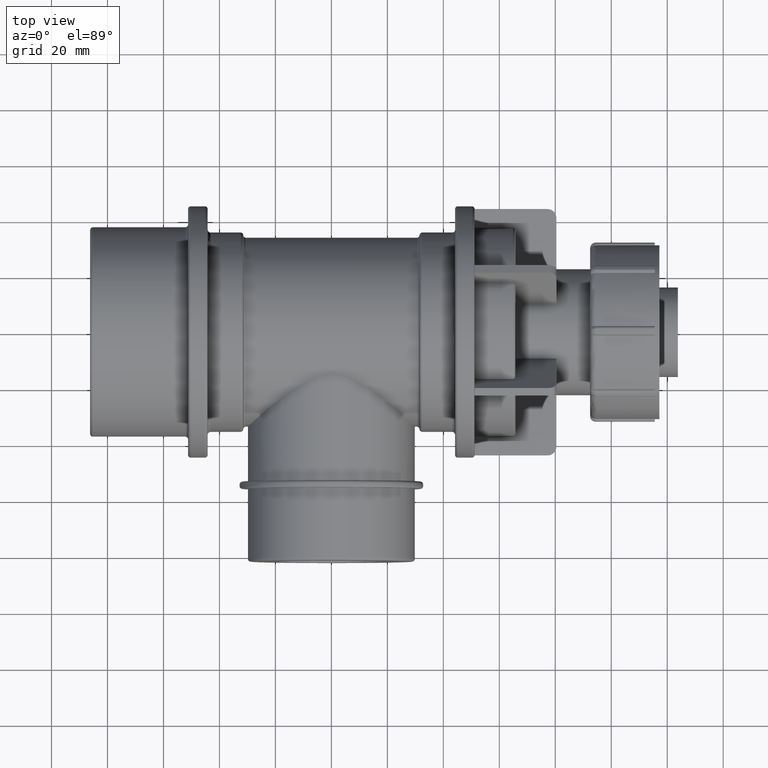
[diagram: clean part render]
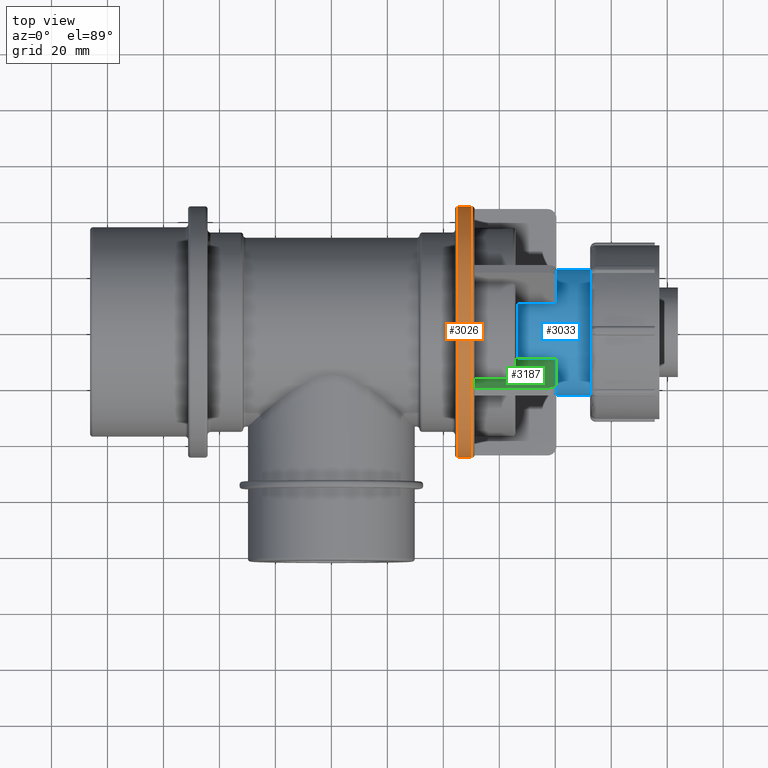
[diagram: same view with three faces highlighted in distinct colors, each labeled with its STEP entity id]
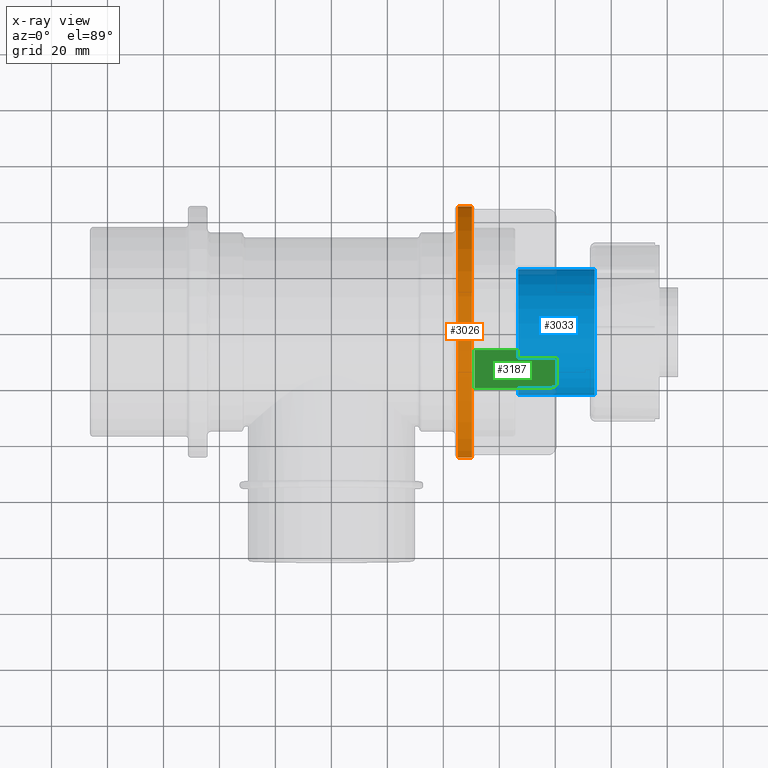
[diagram: x-ray of the same camera — body ghosted, the three highlighted faces saturated]
A machine part, top view with three faces highlighted in distinct colors.
The next image is the same camera in x-ray (body ghosted, the three faces saturated) — at least one of them is partly hidden behind the body in this view.
Their STEP definitions:

[orange] entity #3026 — the highlighted cylindrical surface (bore or boss wall) has radius 45 mm, axis along (1, 0, 0).
#531=CIRCLE('',#3267,45.);
#532=CIRCLE('',#3269,45.);
#760=FACE_BOUND('',#1054,.T.);
#819=FACE_OUTER_BOUND('',#1053,.T.);
#1053=EDGE_LOOP('',(#2107));
#1054=EDGE_LOOP('',(#2108));
#1356=VERTEX_POINT('',#4760);
#1357=VERTEX_POINT('',#4763);
#1650=EDGE_CURVE('',#1356,#1356,#531,.T.);
#1651=EDGE_CURVE('',#1357,#1357,#532,.T.);
#2107=ORIENTED_EDGE('',*,*,#1651,.F.);
#2108=ORIENTED_EDGE('',*,*,#1650,.F.);
#2942=CYLINDRICAL_SURFACE('',#3268,45.);
#3026=ADVANCED_FACE('',(#819,#760),#2942,.T.);
#3267=AXIS2_PLACEMENT_3D('',#4761,#3692,#3693);
#3268=AXIS2_PLACEMENT_3D('',#4762,#3694,#3695);
#3269=AXIS2_PLACEMENT_3D('',#4764,#3696,#3697);
#3692=DIRECTION('center_axis',(-1.,0.,0.));
#3693=DIRECTION('ref_axis',(0.,-1.,1.83697019872103E-16));
#3694=DIRECTION('center_axis',(1.,0.,0.));
#3695=DIRECTION('ref_axis',(0.,1.,0.));
#3696=DIRECTION('center_axis',(1.,0.,0.));
#3697=DIRECTION('ref_axis',(0.,-1.,1.83697019872103E-16));
#4760=CARTESIAN_POINT('',(45.2,45.,-1.37772764904077E-14));
#4761=CARTESIAN_POINT('Origin',(45.2,0.,0.));
#4762=CARTESIAN_POINT('Origin',(47.7,0.,0.));
#4763=CARTESIAN_POINT('',(50.2,45.,-2.75545529808154E-15));
#4764=CARTESIAN_POINT('Origin',(50.2,0.,0.));

[blue] entity #3033 — the highlighted cylindrical surface (bore or boss wall) has radius 22.5 mm, axis along (1, 0, 0).
#538=CIRCLE('',#3281,22.5);
#539=CIRCLE('',#3283,22.5);
#767=FACE_BOUND('',#1068,.T.);
#826=FACE_OUTER_BOUND('',#1067,.T.);
#1067=EDGE_LOOP('',(#2121));
#1068=EDGE_LOOP('',(#2122));
#1363=VERTEX_POINT('',#4781);
#1364=VERTEX_POINT('',#4784);
#1657=EDGE_CURVE('',#1363,#1363,#538,.T.);
#1658=EDGE_CURVE('',#1364,#1364,#539,.T.);
#2121=ORIENTED_EDGE('',*,*,#1658,.F.);
#2122=ORIENTED_EDGE('',*,*,#1657,.F.);
#2944=CYLINDRICAL_SURFACE('',#3282,22.5);
#3033=ADVANCED_FACE('',(#826,#767),#2944,.T.);
#3281=AXIS2_PLACEMENT_3D('',#4782,#3720,#3721);
#3282=AXIS2_PLACEMENT_3D('',#4783,#3722,#3723);
#3283=AXIS2_PLACEMENT_3D('',#4785,#3724,#3725);
#3720=DIRECTION('center_axis',(-1.,0.,0.));
#3721=DIRECTION('ref_axis',(0.,-1.,1.83697019872103E-16));
#3722=DIRECTION('center_axis',(1.,0.,0.));
#3723=DIRECTION('ref_axis',(0.,1.,0.));
#3724=DIRECTION('center_axis',(1.,0.,0.));
#3725=DIRECTION('ref_axis',(0.,0.,-1.));
#4781=CARTESIAN_POINT('',(66.72,22.5,-6.88863824520386E-15));
#4782=CARTESIAN_POINT('Origin',(66.72,0.,0.));
#4783=CARTESIAN_POINT('Origin',(79.91,0.,0.));
#4784=CARTESIAN_POINT('',(94.1,22.5,0.));
#4785=CARTESIAN_POINT('Origin',(94.1,0.,0.));

[green] entity #3187 — the highlighted planar face has unit normal (0, 0.866, 0.5).
#174=LINE('',#6079,#356);
#177=LINE('',#6085,#359);
#178=LINE('',#6087,#360);
#179=LINE('',#6088,#361);
#356=VECTOR('',#4433,26.0100000000001);
#359=VECTOR('',#4438,24.8);
#360=VECTOR('',#4439,29.21);
#361=VECTOR('',#4440,28.);
#491=PLANE('',#3565);
#699=CIRCLE('',#3563,3.2);
#980=FACE_OUTER_BOUND('',#1241,.T.);
#1241=EDGE_LOOP('',(#2832,#2833,#2834,#2835,#2836));
#1589=VERTEX_POINT('',#6072);
#1590=VERTEX_POINT('',#6074);
#1591=VERTEX_POINT('',#6078);
#1593=VERTEX_POINT('',#6084);
#1594=VERTEX_POINT('',#6086);
#2010=EDGE_CURVE('',#1589,#1590,#699,.T.);
#2012=EDGE_CURVE('',#1591,#1590,#174,.T.);
#2015=EDGE_CURVE('',#1589,#1593,#177,.T.);
#2016=EDGE_CURVE('',#1593,#1594,#178,.T.);
#2017=EDGE_CURVE('',#1594,#1591,#179,.T.);
#2832=ORIENTED_EDGE('',*,*,#2010,.F.);
#2833=ORIENTED_EDGE('',*,*,#2015,.T.);
#2834=ORIENTED_EDGE('',*,*,#2016,.T.);
#2835=ORIENTED_EDGE('',*,*,#2017,.T.);
#2836=ORIENTED_EDGE('',*,*,#2012,.T.);
#3187=ADVANCED_FACE('',(#980),#491,.T.);
#3563=AXIS2_PLACEMENT_3D('',#6075,#4428,#4429);
#3565=AXIS2_PLACEMENT_3D('',#6083,#4436,#4437);
#4428=DIRECTION('center_axis',(0.,-0.866025403784439,-0.5));
#4429=DIRECTION('ref_axis',(0.70710678118655,-0.353553390593273,0.612372435695793));
#4433=DIRECTION('',(1.,0.,0.));
#4436=DIRECTION('center_axis',(0.,0.866025403784439,0.5));
#4437=DIRECTION('ref_axis',(-1.,0.,0.));
#4438=DIRECTION('',(8.26212483441977E-16,0.5,-0.866025403784439));
#4439=DIRECTION('',(-1.,7.60166398237012E-17,-1.31664682395314E-16));
#4440=DIRECTION('',(0.,-0.5,0.866025403784439));
#6072=CARTESIAN_POINT('',(80.41,-19.0143593539449,36.1338364744051));
#6074=CARTESIAN_POINT('',(77.2100000000001,-20.6143593539449,38.9051177665153));
#6075=CARTESIAN_POINT('Origin',(77.2100000000001,-19.0143593539449,36.1338364744051));
#6078=CARTESIAN_POINT('',(51.2,-20.6143593539449,38.9051177665153));
#6079=CARTESIAN_POINT('',(80.41,-20.6143593539449,38.9051177665153));
#6083=CARTESIAN_POINT('Origin',(65.805,-13.6143593539449,26.7807621135332));
#6084=CARTESIAN_POINT('',(80.41,-6.61435935394489,14.656406460551));
#6085=CARTESIAN_POINT('',(80.41,-9.86435935394489,20.2855715851499));
#6086=CARTESIAN_POINT('',(51.2,-6.61435935394489,14.656406460551));
#6087=CARTESIAN_POINT('',(51.2,-6.61435935394489,14.656406460551));
#6088=CARTESIAN_POINT('',(51.2,-20.6143593539449,38.9051177665153));